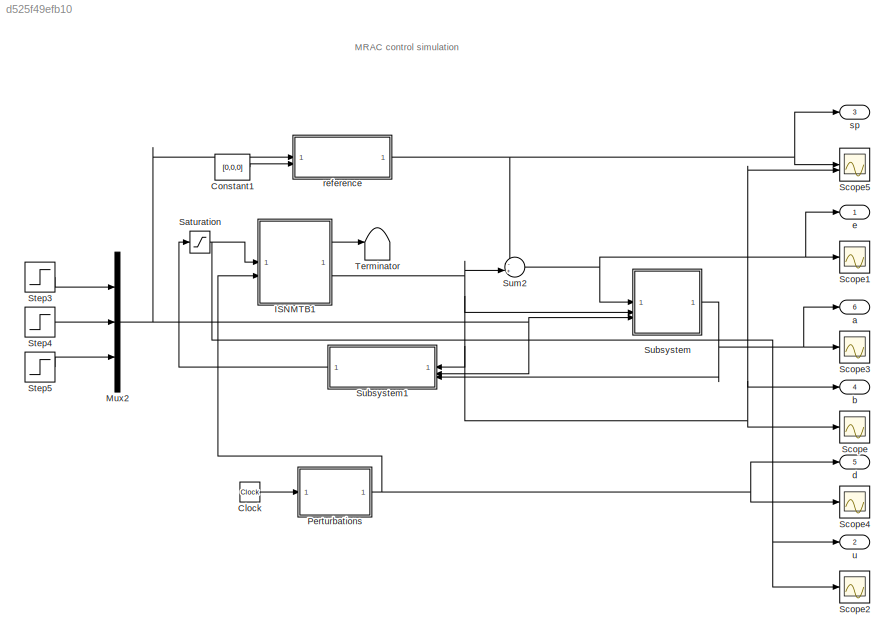
MODEL slx_d525f49efb10
KIND model
CONFIG AbsTol = auto
CONFIG EnableMultiTasking = off
CONFIG FixedStep = 1E-4
CONFIG MaxStep = 1e-4
CONFIG MinStep = auto
CONFIG RelTol = 1e-3
CONFIG SampleTimeConstraint = Unconstrained
CONFIG SolverName = VariableStepAuto
CONFIG StartTime = 0.0
CONFIG StopTime = 2000
BLOCK [Clock] Clock
  Decimation = 1000
BLOCK [Constant] Constant1
  Value = [0,0,0]
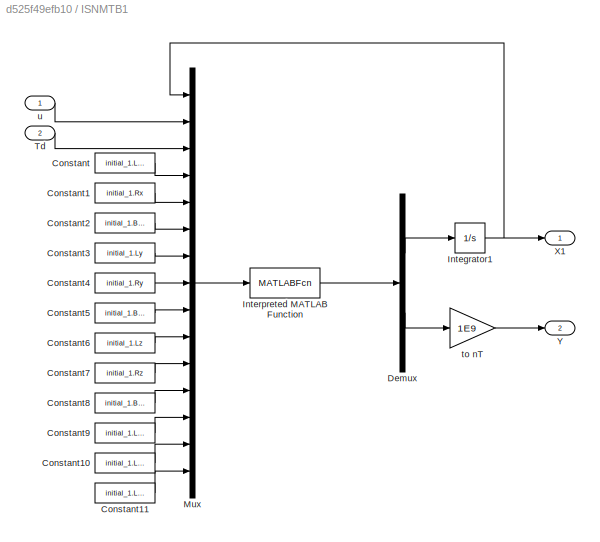
BLOCK [SubSystem] ISNMTB1
BLOCK [Constant] ISNMTB1/Constant
  Value = initial_1.Lx
BLOCK [Constant] ISNMTB1/Constant1
  Value = initial_1.Rx
BLOCK [Constant] ISNMTB1/Constant10
  Value = initial_1.Lxz
BLOCK [Constant] ISNMTB1/Constant11
  Value = initial_1.Lzy
BLOCK [Constant] ISNMTB1/Constant2
  Value = initial_1.B_x
BLOCK [Constant] ISNMTB1/Constant3
  Value = initial_1.Ly
BLOCK [Constant] ISNMTB1/Constant4
  Value = initial_1.Ry
BLOCK [Constant] ISNMTB1/Constant5
  Value = initial_1.B_y
BLOCK [Constant] ISNMTB1/Constant6
  Value = initial_1.Lz
BLOCK [Constant] ISNMTB1/Constant7
  Value = initial_1.Rz
BLOCK [Constant] ISNMTB1/Constant8
  Value = initial_1.B_z
BLOCK [Constant] ISNMTB1/Constant9
  Value = initial_1.Lxy
BLOCK [Demux] ISNMTB1/Demux
  Outputs = 2
BLOCK [Integrator] ISNMTB1/Integrator1
  InitialCondition = [0,0,0]'
BLOCK [MATLABFcn] ISNMTB1/Interpreted MATLAB Function
  MATLABFcn = is501nmtbModel_simu1
  OutputDimensions = 6
BLOCK [Mux] ISNMTB1/Mux
  DisplayOption = bar
  Inputs = 15
BLOCK [Inport] ISNMTB1/Td
  Port = 2
BLOCK [Outport] ISNMTB1/X1
BLOCK [Outport] ISNMTB1/Y
  Port = 2
BLOCK [Gain] ISNMTB1/to nT
  Gain = 1E9
BLOCK [Inport] ISNMTB1/u
BLOCK [Mux] Mux2
  DisplayOption = bar
  Inputs = 3
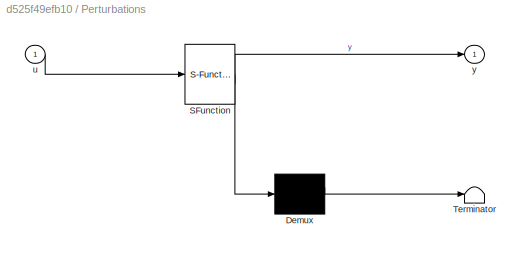
BLOCK [SubSystem] Perturbations
  ErrorFcn = Stateflow.Translate.translate
  PermitHierarchicalResolution = ExplicitOnly
  SFBlockType = MATLAB Function
  TreatAsAtomicUnit = on
BLOCK [Demux] Perturbations/ Demux 
  Outputs = 1
BLOCK [S-Function] Perturbations/ SFunction 
  EnableBusSupport = on
  FunctionName = sf_sfun
  PortCounts = [1 2]
  SFcnIsStateOwnerBlock = off
  SFunctionDeploymentMode = off
  Tag = Stateflow S-Function 2
BLOCK [Terminator] Perturbations/ Terminator 
BLOCK [Inport] Perturbations/u
BLOCK [Outport] Perturbations/y
BLOCK [Saturate] Saturation
  LowerLimit = -[50,50,50]'
  NameLocation = right
  UpperLimit = [50,50,50]'
BLOCK [Scope] Scope
  Floating = off
  NumInputPorts = 1
  ScopeSpecificationString = Simulink.scopes.TimeScopeBlockCfg('CurrentConfiguration', extmgr.ConfigurationSet(extmgr.Configuration('Core','General UI',true),extmgr.Configuration('Core','Source UI',true),extmgr.Configuration('Sources','WiredSimulink',true,'DataLoggingVariableName','ScopeData1'),extmgr.Configuration('Visuals','Time Domain',true,'SerializedDisplays',{struct('MinYLimReal','-0.00017','MaxYLimReal','0.0009','YLabe...<+1554ch>
BLOCK [Scope] Scope1
  Floating = off
  NumInputPorts = 1
  ScopeSpecificationString = Simulink.scopes.TimeScopeBlockCfg('CurrentConfiguration', extmgr.ConfigurationSet(extmgr.Configuration('Core','General UI',true),extmgr.Configuration('Core','Source UI',true),extmgr.Configuration('Sources','WiredSimulink',true,'DataLoggingVariableName','ScopeData1'),extmgr.Configuration('Visuals','Time Domain',true,'SerializedDisplays',{struct('MinYLimReal','-30050.00000','MaxYLimReal','43950.0000...<+1602ch>
BLOCK [Scope] Scope2
  Floating = off
  NumInputPorts = 1
  ScopeSpecificationString = Simulink.scopes.TimeScopeBlockCfg('CurrentConfiguration', extmgr.ConfigurationSet(extmgr.Configuration('Core','General UI',true),extmgr.Configuration('Core','Source UI',true),extmgr.Configuration('Sources','WiredSimulink',true,'DataLoggingVariableName','ScopeData2'),extmgr.Configuration('Visuals','Time Domain',true,'SerializedDisplays',{struct('MinYLimReal','-62.5','MaxYLimReal','62.5','YLabelReal...<+1725ch>
BLOCK [Scope] Scope3
  Floating = off
  NumInputPorts = 1
  ScopeSpecificationString = Simulink.scopes.TimeScopeBlockCfg('CurrentConfiguration', extmgr.ConfigurationSet(extmgr.Configuration('Core','General UI',true),extmgr.Configuration('Core','Source UI',true),extmgr.Configuration('Sources','WiredSimulink',true,'DataLoggingVariableName','ScopeData3'),extmgr.Configuration('Visuals','Time Domain',true,'SerializedDisplays',{struct('MinYLimReal','-2486.42839','MaxYLimReal','276.26982',...<+1760ch>
BLOCK [Scope] Scope4
  Floating = off
  NumInputPorts = 1
  ScopeSpecificationString = Simulink.scopes.TimeScopeBlockCfg('CurrentConfiguration', extmgr.ConfigurationSet(extmgr.Configuration('Core','General UI',true),extmgr.Configuration('Core','Source UI',true),extmgr.Configuration('Sources','WiredSimulink',true,'DataLoggingVariableName','ScopeData4'),extmgr.Configuration('Visuals','Time Domain',true,'SerializedDisplays',{struct('MinYLimReal','-0.00003','MaxYLimReal','0.000044','YLa...<+1578ch>
BLOCK [Scope] Scope5
  Floating = off
  NumInputPorts = 2
  ScopeSpecificationString = Simulink.scopes.TimeScopeBlockCfg('CurrentConfiguration', extmgr.ConfigurationSet(extmgr.Configuration('Core','General UI',true),extmgr.Configuration('Core','Source UI',true),extmgr.Configuration('Sources','WiredSimulink',true,'DataLoggingVariableName','ScopeData1'),extmgr.Configuration('Visuals','Time Domain',true,'SerializedDisplays',{struct('MinYLimReal','-0.0000034','MaxYLimReal','0.0000053','...<+1753ch>
BLOCK [Step] Step3
  After = 0
  SampleTime = 0
  Time = 0.1
BLOCK [Step] Step4
  After = 0
  SampleTime = 0
  Time = 0.1
BLOCK [Step] Step5
  After = 0
  SampleTime = 0
  Time = 0.1
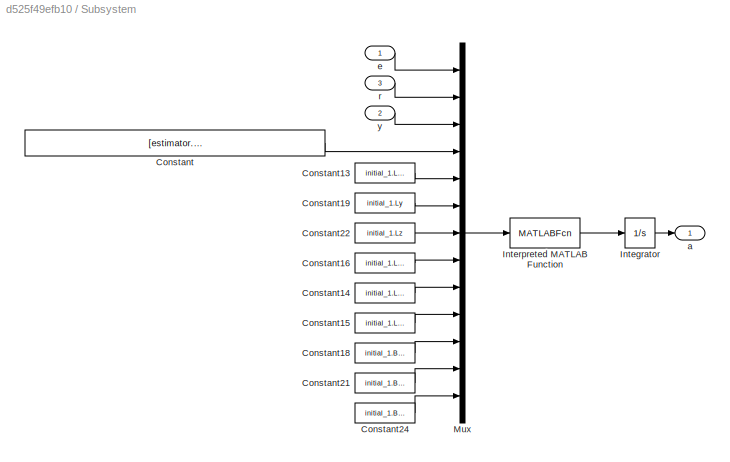
BLOCK [SubSystem] Subsystem
BLOCK [Constant] Subsystem/Constant
  Value = [estimator.gamma1, estimator.gamma2, estimator.gamma3]
BLOCK [Constant] Subsystem/Constant13
  Value = initial_1.Lx
BLOCK [Constant] Subsystem/Constant14
  Value = initial_1.Lxz
BLOCK [Constant] Subsystem/Constant15
  Value = initial_1.Lzy
BLOCK [Constant] Subsystem/Constant16
  Value = initial_1.Lxy
BLOCK [Constant] Subsystem/Constant18
  Value = initial_1.B_x
BLOCK [Constant] Subsystem/Constant19
  Value = initial_1.Ly
BLOCK [Constant] Subsystem/Constant21
  Value = initial_1.B_y
BLOCK [Constant] Subsystem/Constant22
  Value = initial_1.Lz
BLOCK [Constant] Subsystem/Constant24
  Value = initial_1.B_z
BLOCK [Integrator] Subsystem/Integrator
  InitialCondition = [0,0,0,0,0,0]
BLOCK [MATLABFcn] Subsystem/Interpreted MATLAB Function
  MATLABFcn = estimator
  OutputDimensions = 6
BLOCK [Mux] Subsystem/Mux
  DisplayOption = bar
  Inputs = 13
BLOCK [Outport] Subsystem/a
BLOCK [Inport] Subsystem/e
BLOCK [Inport] Subsystem/r
  Port = 3
BLOCK [Inport] Subsystem/y
  Port = 2
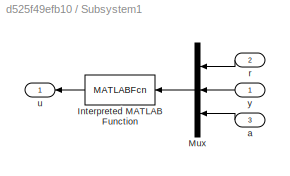
BLOCK [SubSystem] Subsystem1
  NameLocation = top
BLOCK [MATLABFcn] Subsystem1/Interpreted MATLAB Function
  MATLABFcn = controller
  NameLocation = top
BLOCK [Mux] Subsystem1/Mux
  DisplayOption = bar
  Inputs = 3
  NameLocation = top
BLOCK [Inport] Subsystem1/a
  NameLocation = top
  Port = 3
BLOCK [Inport] Subsystem1/r
  NameLocation = top
  Port = 2
BLOCK [Outport] Subsystem1/u
  NameLocation = top
BLOCK [Inport] Subsystem1/y
  NameLocation = top
BLOCK [Sum] Sum2
  Inputs = -+|
BLOCK [Terminator] Terminator
BLOCK [Outport] a
  Port = 6
BLOCK [Outport] b
  Port = 4
BLOCK [Outport] d
  Port = 5
BLOCK [Outport] e
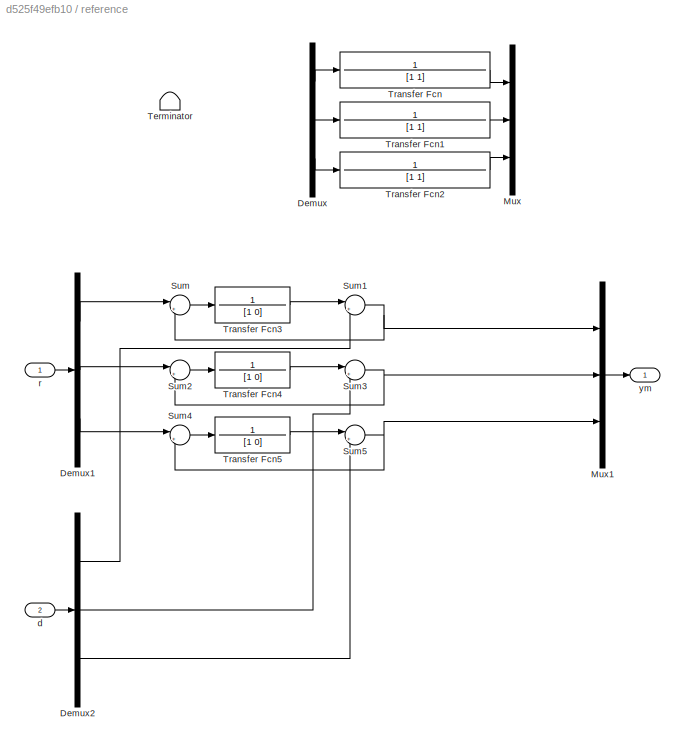
BLOCK [SubSystem] reference
BLOCK [Demux] reference/Demux
  Commented = on
  Outputs = 3
BLOCK [Demux] reference/Demux1
  Outputs = 3
BLOCK [Demux] reference/Demux2
  Outputs = 3
BLOCK [Mux] reference/Mux
  Commented = on
  DisplayOption = bar
  Inputs = 3
BLOCK [Mux] reference/Mux1
  DisplayOption = bar
  Inputs = 3
BLOCK [Sum] reference/Sum
  Inputs = |+-
BLOCK [Sum] reference/Sum1
  Inputs = |++
BLOCK [Sum] reference/Sum2
  Inputs = |+-
BLOCK [Sum] reference/Sum3
  Inputs = |++
BLOCK [Sum] reference/Sum4
  Inputs = |+-
BLOCK [Sum] reference/Sum5
  Inputs = |++
BLOCK [Terminator] reference/Terminator
  Commented = on
BLOCK [TransferFcn] reference/Transfer Fcn
  Commented = on
  Denominator = [1 1]
  Numerator = 1
BLOCK [TransferFcn] reference/Transfer Fcn1
  Commented = on
  Denominator = [1 1]
  Numerator = 1
BLOCK [TransferFcn] reference/Transfer Fcn2
  Commented = on
  Denominator = [1 1]
  Numerator = 1
BLOCK [TransferFcn] reference/Transfer Fcn3
  Denominator = [1 0]
  Numerator = 1
BLOCK [TransferFcn] reference/Transfer Fcn4
  Denominator = [1 0]
  Numerator = 1
BLOCK [TransferFcn] reference/Transfer Fcn5
  Denominator = [1 0]
  Numerator = 1
BLOCK [Inport] reference/d
  Port = 2
BLOCK [Inport] reference/r
BLOCK [Outport] reference/ym
BLOCK [Outport] sp
  Port = 3
BLOCK [Outport] u
  Port = 2
ANNOTATION (root): MRAC control simulation
LINE Clock:1 -> Perturbations:1
LINE Constant1:1 -> reference:2
LINE ISNMTB1/Constant10:1 -> ISNMTB1/Mux:14
LINE ISNMTB1/Constant11:1 -> ISNMTB1/Mux:15
LINE ISNMTB1/Constant1:1 -> ISNMTB1/Mux:5
LINE ISNMTB1/Constant2:1 -> ISNMTB1/Mux:6
LINE ISNMTB1/Constant3:1 -> ISNMTB1/Mux:7
LINE ISNMTB1/Constant4:1 -> ISNMTB1/Mux:8
LINE ISNMTB1/Constant5:1 -> ISNMTB1/Mux:9
LINE ISNMTB1/Constant6:1 -> ISNMTB1/Mux:10
LINE ISNMTB1/Constant7:1 -> ISNMTB1/Mux:11
LINE ISNMTB1/Constant8:1 -> ISNMTB1/Mux:12
LINE ISNMTB1/Constant9:1 -> ISNMTB1/Mux:13
LINE ISNMTB1/Constant:1 -> ISNMTB1/Mux:4
LINE ISNMTB1/Demux:1 -> ISNMTB1/Integrator1:1
LINE ISNMTB1/Demux:2 -> ISNMTB1/to nT:1
NET ISNMTB1/Integrator1:1 -> ISNMTB1/Mux:1, ISNMTB1/X1:1
LINE ISNMTB1/Interpreted MATLAB Function:1 -> ISNMTB1/Demux:1
LINE ISNMTB1/Mux:1 -> ISNMTB1/Interpreted MATLAB Function:1
LINE ISNMTB1/Td:1 -> ISNMTB1/Mux:3
LINE ISNMTB1/to nT:1 -> ISNMTB1/Y:1
LINE ISNMTB1/u:1 -> ISNMTB1/Mux:2
LINE ISNMTB1:1 -> Terminator:1
NET ISNMTB1:2 -> Scope5:2, Scope:1, Subsystem1:1, Subsystem:2, Sum2:2, b:1
NET Mux2:1 -> Subsystem1:2, Subsystem:3, reference:1
NET Perturbations:1 -> ISNMTB1:2, Scope4:1, d:1
NET Saturation:1 -> ISNMTB1:1, Scope2:1, u:1
LINE Step3:1 -> Mux2:1
LINE Step4:1 -> Mux2:2
LINE Step5:1 -> Mux2:3
LINE Subsystem/Constant13:1 -> Subsystem/Mux:5
LINE Subsystem/Constant14:1 -> Subsystem/Mux:9
LINE Subsystem/Constant15:1 -> Subsystem/Mux:10
LINE Subsystem/Constant16:1 -> Subsystem/Mux:8
LINE Subsystem/Constant18:1 -> Subsystem/Mux:11
LINE Subsystem/Constant19:1 -> Subsystem/Mux:6
LINE Subsystem/Constant21:1 -> Subsystem/Mux:12
LINE Subsystem/Constant22:1 -> Subsystem/Mux:7
LINE Subsystem/Constant24:1 -> Subsystem/Mux:13
LINE Subsystem/Constant:1 -> Subsystem/Mux:4
LINE Subsystem/Integrator:1 -> Subsystem/a:1
LINE Subsystem/Interpreted MATLAB Function:1 -> Subsystem/Integrator:1
LINE Subsystem/Mux:1 -> Subsystem/Interpreted MATLAB Function:1
LINE Subsystem/e:1 -> Subsystem/Mux:1
LINE Subsystem/r:1 -> Subsystem/Mux:2
LINE Subsystem/y:1 -> Subsystem/Mux:3
LINE Subsystem1/Interpreted MATLAB Function:1 -> Subsystem1/u:1
LINE Subsystem1/Mux:1 -> Subsystem1/Interpreted MATLAB Function:1
LINE Subsystem1/a:1 -> Subsystem1/Mux:3
LINE Subsystem1/r:1 -> Subsystem1/Mux:1
LINE Subsystem1/y:1 -> Subsystem1/Mux:2
LINE Subsystem1:1 -> Saturation:1
NET Subsystem:1 -> Scope3:1, Subsystem1:3, a:1
NET Sum2:1 -> Scope1:1, Subsystem:1, e:1
LINE reference/Demux1:1 -> reference/Sum:1
LINE reference/Demux1:2 -> reference/Sum2:1
LINE reference/Demux1:3 -> reference/Sum4:1
LINE reference/Demux2:1 -> reference/Sum1:2
LINE reference/Demux2:2 -> reference/Sum3:2
LINE reference/Demux2:3 -> reference/Sum5:2
LINE reference/Demux:1 -> reference/Transfer Fcn:1
LINE reference/Demux:2 -> reference/Transfer Fcn1:1
LINE reference/Demux:3 -> reference/Transfer Fcn2:1
LINE reference/Mux1:1 -> reference/ym:1
NET reference/Sum1:1 -> reference/Mux1:1, reference/Sum:2
LINE reference/Sum2:1 -> reference/Transfer Fcn4:1
NET reference/Sum3:1 -> reference/Mux1:2, reference/Sum2:2
LINE reference/Sum4:1 -> reference/Transfer Fcn5:1
NET reference/Sum5:1 -> reference/Mux1:3, reference/Sum4:2
LINE reference/Sum:1 -> reference/Transfer Fcn3:1
LINE reference/Transfer Fcn1:1 -> reference/Mux:2
LINE reference/Transfer Fcn2:1 -> reference/Mux:3
LINE reference/Transfer Fcn3:1 -> reference/Sum1:1
LINE reference/Transfer Fcn4:1 -> reference/Sum3:1
LINE reference/Transfer Fcn5:1 -> reference/Sum5:1
LINE reference/Transfer Fcn:1 -> reference/Mux:1
LINE reference/d:1 -> reference/Demux2:1
LINE reference/r:1 -> reference/Demux1:1
NET reference:1 -> Scope5:1, Sum2:1, sp:1
note: NET lines group one-source signal fan-out (src -> all destinations, sorted); 1:1 wires keep LINE
CHART Perturbations states=1 transitions=1
  STATE_LABEL 'eML_blk_kernel()'
  STATE_LABEL 'SCRIPT:\nfunction y = fcn(u)\ny= [2.522*sin(2*pi*4.788E-3*u)+3.249E04;\n   -5.174*sin(2*pi*7.481E-3*u)-2.265E04;\n    3.359*sin(2*pi*8.378E-3*u)+3.655E04]*1E-9;\nend'
CHART  states=0 transitions=0
